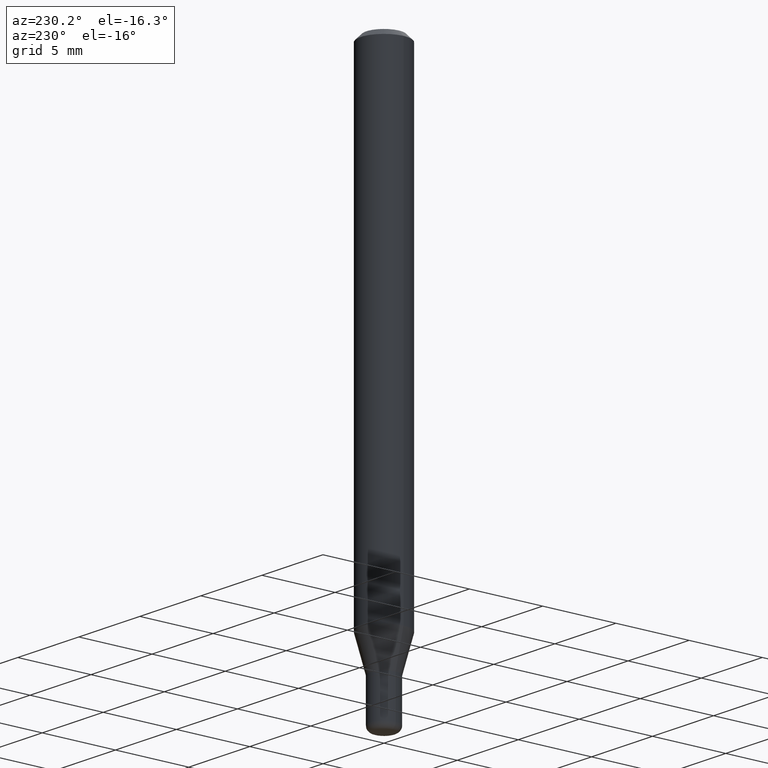
[diagram: clean part render]
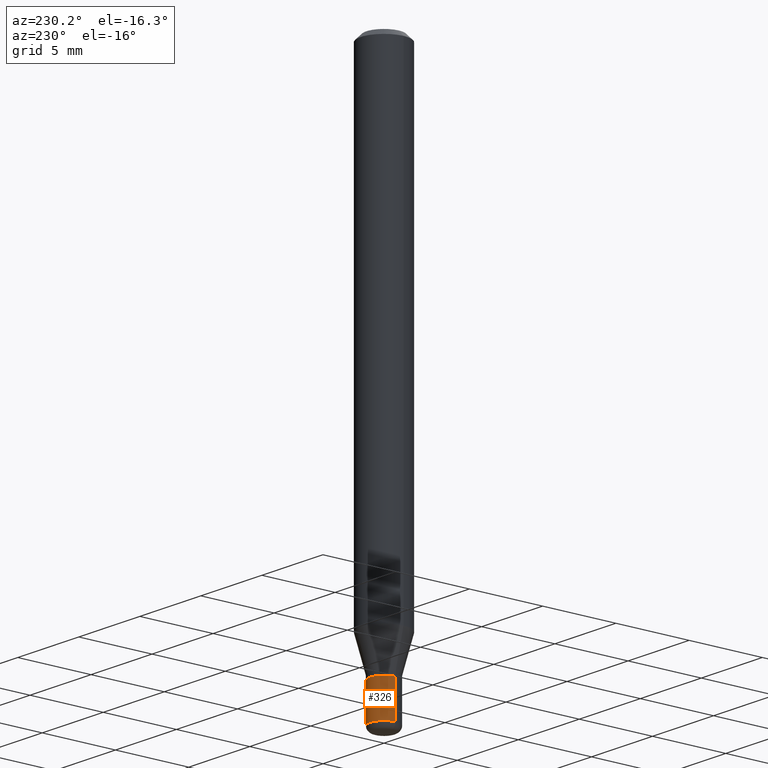
[diagram: same view with one face highlighted and labeled with its STEP entity id]
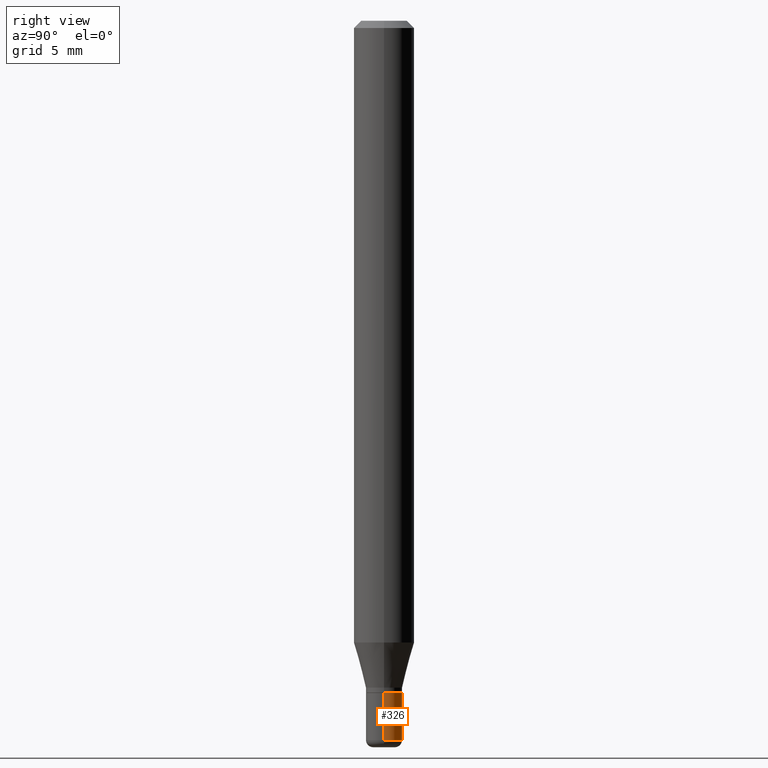
[diagram: same view with one face highlighted and labeled with its STEP entity id]
A machine part, auxiliary view. The second image highlights one B-rep face of the part: STEP entity #326.
A second angle (right view) of the same face is appended — the face is thin or edge-on in the first view.
In plain terms, the highlighted cylindrical surface (edge-blend (fillet) strip) has radius 0.9525 mm, axis along (-0, 0, 1).
Its self-contained STEP definition (entity closure, byte-faithful):
#22 = CIRCLE ( 'NONE', #323, 0.03749999999999999861 ) ;
#38 = AXIS2_PLACEMENT_3D ( 'NONE', #404, #243, #513 ) ;
#54 = EDGE_LOOP ( 'NONE', ( #361, #386, #67, #196 ) ) ;
#56 = CARTESIAN_POINT ( 'NONE',  ( 0.000000000000000000, 0.000000000000000000, 0.000000000000000000 ) ) ;
#67 = ORIENTED_EDGE ( 'NONE', *, *, #248, .F. ) ;
#74 = VERTEX_POINT ( 'NONE', #202 ) ;
#83 = AXIS2_PLACEMENT_3D ( 'NONE', #56, #306, #222 ) ;
#94 = DIRECTION ( 'NONE',  ( -2.445468806185136877E-29, 3.491481338843145188E-15, 1.000000000000000000 ) ) ;
#123 = LINE ( 'NONE', #214, #477 ) ;
#134 = LINE ( 'NONE', #231, #510 ) ;
#146 = CYLINDRICAL_SURFACE ( 'NONE', #83, 0.03749999999999999167 ) ;
#193 = VERTEX_POINT ( 'NONE', #331 ) ;
#196 = ORIENTED_EDGE ( 'NONE', *, *, #242, .F. ) ;
#202 = CARTESIAN_POINT ( 'NONE',  ( -0.03749999999999999861, -4.748186547003430777E-15, -1.387500000000000178 ) ) ;
#211 = CARTESIAN_POINT ( 'NONE',  ( 3.393087968581877252E-29, -4.844430357644865674E-15, -1.387500000000000178 ) ) ;
#214 = CARTESIAN_POINT ( 'NONE',  ( 0.03749999999999999167, -2.618611004132349523E-16, 1.828566290923475572E-30 ) ) ;
#222 = DIRECTION ( 'NONE',  ( 1.000000000000000000, -6.982962677686266711E-15, 4.876176775795935793E-29 ) ) ;
#231 = CARTESIAN_POINT ( 'NONE',  ( -0.03749999999999999167, 2.664535259100375105E-16, -1.844600658845589458E-30 ) ) ;
#242 = EDGE_CURVE ( 'NONE', #428, #357, #123, .T. ) ;
#243 = DIRECTION ( 'NONE',  ( -2.445468806185136597E-29, 3.491481338843145583E-15, 1.000000000000000000 ) ) ;
#248 = EDGE_CURVE ( 'NONE', #357, #74, #22, .T. ) ;
#306 = DIRECTION ( 'NONE',  ( -2.445468806185136597E-29, 3.491481338843145583E-15, 1.000000000000000000 ) ) ;
#323 = AXIS2_PLACEMENT_3D ( 'NONE', #211, #372, #338 ) ;
#326 = ADVANCED_FACE ( 'NONE', ( #424 ), #146, .T. ) ;
#331 = CARTESIAN_POINT ( 'NONE',  ( -0.03749999999999999167, -4.748186547003430777E-15, -1.485000000000000098 ) ) ;
#338 = DIRECTION ( 'NONE',  ( 1.000000000000000000, -6.982962677686268288E-15, 0.000000000000000000 ) ) ;
#342 = CARTESIAN_POINT ( 'NONE',  ( 0.03749999999999999167, -5.446710888595306494E-15, -1.485000000000000098 ) ) ;
#357 = VERTEX_POINT ( 'NONE', #493 ) ;
#358 = CIRCLE ( 'NONE', #38, 0.03749999999999999167 ) ;
#360 = EDGE_CURVE ( 'NONE', #193, #74, #134, .T. ) ;
#361 = ORIENTED_EDGE ( 'NONE', *, *, #518, .T. ) ;
#372 = DIRECTION ( 'NONE',  ( -2.445468806185136597E-29, 3.491481338843145583E-15, 1.000000000000000000 ) ) ;
#386 = ORIENTED_EDGE ( 'NONE', *, *, #360, .T. ) ;
#404 = CARTESIAN_POINT ( 'NONE',  ( 3.631521177184928138E-29, -5.184849788182071492E-15, -1.485000000000000098 ) ) ;
#424 = FACE_OUTER_BOUND ( 'NONE', #54, .T. ) ;
#428 = VERTEX_POINT ( 'NONE', #342 ) ;
#470 = DIRECTION ( 'NONE',  ( -2.445468806185136877E-29, 3.491481338843145188E-15, 1.000000000000000000 ) ) ;
#477 = VECTOR ( 'NONE', #94, 39.37007874015748143 ) ;
#493 = CARTESIAN_POINT ( 'NONE',  ( 0.03749999999999999861, -5.106291458058100676E-15, -1.387500000000000178 ) ) ;
#510 = VECTOR ( 'NONE', #470, 39.37007874015748143 ) ;
#513 = DIRECTION ( 'NONE',  ( 1.000000000000000000, -6.982962677686269866E-15, 0.000000000000000000 ) ) ;
#518 = EDGE_CURVE ( 'NONE', #428, #193, #358, .T. ) ;